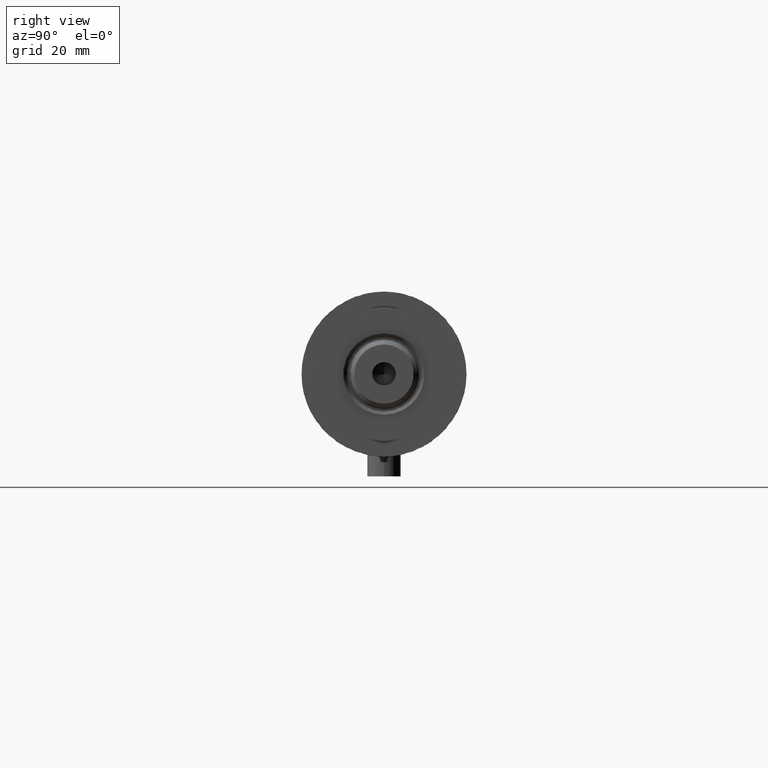
[diagram: clean part render]
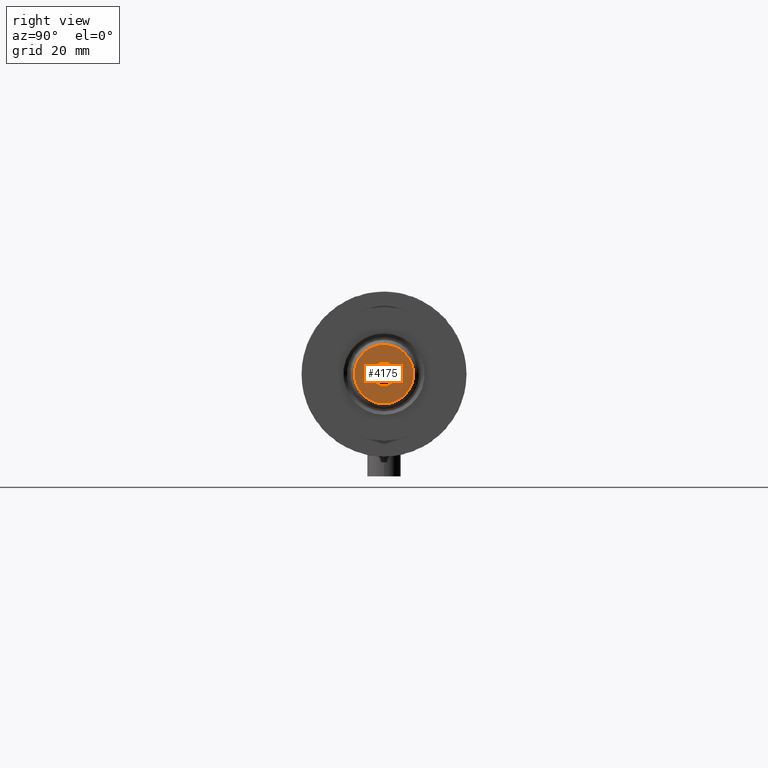
[diagram: same view with one face highlighted and labeled with its STEP entity id]
A machine part, right view. The second image highlights one B-rep face of the part: STEP entity #4175.
In plain terms, the highlighted planar face has unit normal (1, 0, -0).
Its self-contained STEP definition (entity closure, byte-faithful):
#84 = EDGE_LOOP ( 'NONE', ( #3622, #3994 ) ) ;
#192 = EDGE_CURVE ( 'NONE', #4394, #1809, #2868, .T. ) ;
#204 = CIRCLE ( 'NONE', #4106, 4.249999999999997335 ) ;
#245 = FACE_BOUND ( 'NONE', #1040, .T. ) ;
#840 = DIRECTION ( 'NONE',  ( 1.000000000000000000, 0.000000000000000000, 0.000000000000000000 ) ) ;
#926 = AXIS2_PLACEMENT_3D ( 'NONE', #4349, #1279, #2640 ) ;
#1008 = VERTEX_POINT ( 'NONE', #1270 ) ;
#1040 = EDGE_LOOP ( 'NONE', ( #4406, #3794 ) ) ;
#1076 = CIRCLE ( 'NONE', #3085, 4.249999999999997335 ) ;
#1270 = CARTESIAN_POINT ( 'NONE',  ( 4.249999999999997335, 0.000000000000000000, 207.7000000000000171 ) ) ;
#1279 = DIRECTION ( 'NONE',  ( 0.000000000000000000, 0.000000000000000000, 1.000000000000000000 ) ) ;
#1351 = EDGE_CURVE ( 'NONE', #1008, #1485, #204, .T. ) ;
#1453 = AXIS2_PLACEMENT_3D ( 'NONE', #1624, #2813, #2091 ) ;
#1473 = DIRECTION ( 'NONE',  ( 1.000000000000000000, 0.000000000000000000, 0.000000000000000000 ) ) ;
#1485 = VERTEX_POINT ( 'NONE', #4354 ) ;
#1490 = CARTESIAN_POINT ( 'NONE',  ( 0.000000000000000000, 0.000000000000000000, 207.7000000000000171 ) ) ;
#1525 = DIRECTION ( 'NONE',  ( 0.000000000000000000, 0.000000000000000000, 1.000000000000000000 ) ) ;
#1624 = CARTESIAN_POINT ( 'NONE',  ( 0.000000000000000000, 0.000000000000000000, 207.7000000000000171 ) ) ;
#1773 = DIRECTION ( 'NONE',  ( -0.000000000000000000, -0.000000000000000000, 1.000000000000000000 ) ) ;
#1809 = VERTEX_POINT ( 'NONE', #1883 ) ;
#1883 = CARTESIAN_POINT ( 'NONE',  ( 10.59999999999997122, 1.383850883036507292E-15, 207.7000000000000171 ) ) ;
#2091 = DIRECTION ( 'NONE',  ( 1.000000000000000000, 0.000000000000000000, -0.000000000000000000 ) ) ;
#2487 = CARTESIAN_POINT ( 'NONE',  ( 0.000000000000000000, 0.000000000000000000, 207.7000000000000171 ) ) ;
#2527 = CARTESIAN_POINT ( 'NONE',  ( -10.59999999999997122, 0.000000000000000000, 207.7000000000000171 ) ) ;
#2640 = DIRECTION ( 'NONE',  ( 1.000000000000000000, 0.000000000000000000, 0.000000000000000000 ) ) ;
#2658 = EDGE_CURVE ( 'NONE', #1485, #1008, #1076, .T. ) ;
#2719 = FACE_OUTER_BOUND ( 'NONE', #84, .T. ) ;
#2739 = CIRCLE ( 'NONE', #2949, 10.59999999999997122 ) ;
#2813 = DIRECTION ( 'NONE',  ( 0.000000000000000000, 0.000000000000000000, 1.000000000000000000 ) ) ;
#2853 = DIRECTION ( 'NONE',  ( -0.000000000000000000, -0.000000000000000000, 1.000000000000000000 ) ) ;
#2868 = CIRCLE ( 'NONE', #926, 10.59999999999997122 ) ;
#2949 = AXIS2_PLACEMENT_3D ( 'NONE', #2487, #1525, #840 ) ;
#2991 = EDGE_CURVE ( 'NONE', #1809, #4394, #2739, .T. ) ;
#3085 = AXIS2_PLACEMENT_3D ( 'NONE', #1490, #2853, #1473 ) ;
#3184 = DIRECTION ( 'NONE',  ( 1.000000000000000000, 0.000000000000000000, 0.000000000000000000 ) ) ;
#3223 = CARTESIAN_POINT ( 'NONE',  ( 0.000000000000000000, 0.000000000000000000, 207.7000000000000171 ) ) ;
#3622 = ORIENTED_EDGE ( 'NONE', *, *, #192, .T. ) ;
#3794 = ORIENTED_EDGE ( 'NONE', *, *, #2658, .F. ) ;
#3994 = ORIENTED_EDGE ( 'NONE', *, *, #2991, .T. ) ;
#4106 = AXIS2_PLACEMENT_3D ( 'NONE', #3223, #1773, #3184 ) ;
#4175 = ADVANCED_FACE ( 'NONE', ( #2719, #245 ), #4356, .T. ) ;
#4349 = CARTESIAN_POINT ( 'NONE',  ( 0.000000000000000000, 0.000000000000000000, 207.7000000000000171 ) ) ;
#4354 = CARTESIAN_POINT ( 'NONE',  ( -4.249999999999997335, 5.204748896376248727E-16, 207.7000000000000171 ) ) ;
#4356 = PLANE ( 'NONE',  #1453 ) ;
#4394 = VERTEX_POINT ( 'NONE', #2527 ) ;
#4406 = ORIENTED_EDGE ( 'NONE', *, *, #1351, .F. ) ;